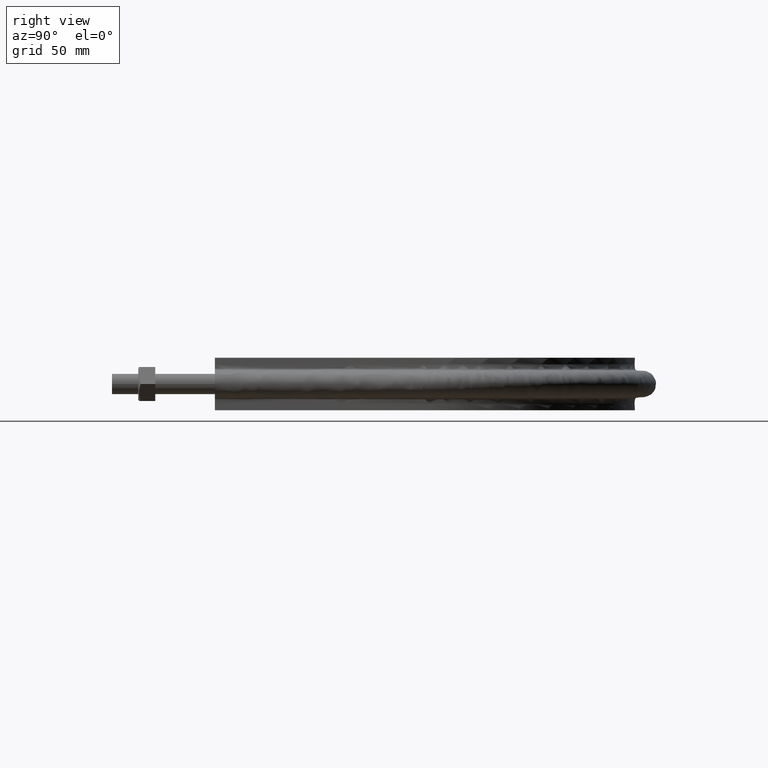
[diagram: clean part render]
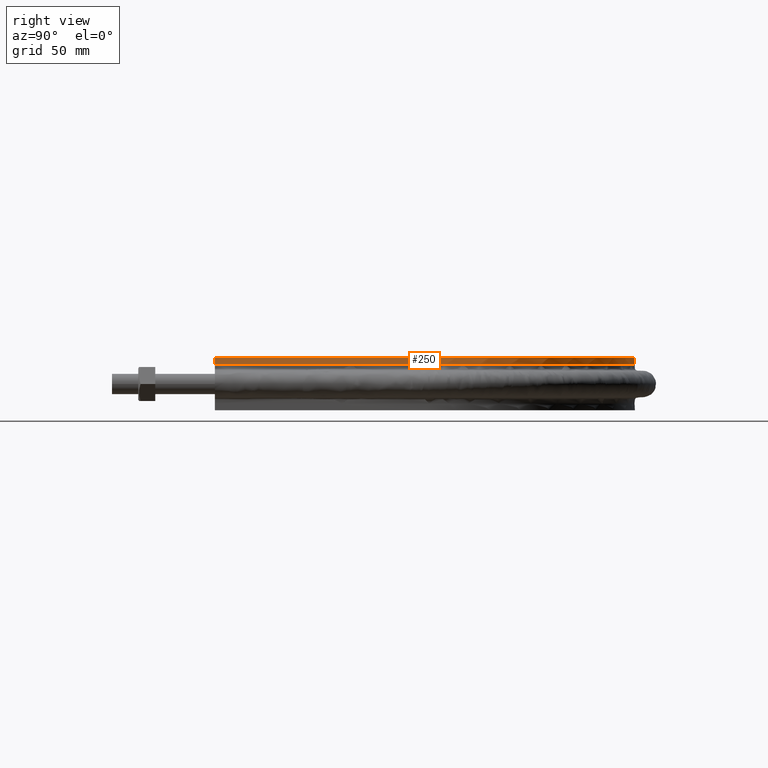
[diagram: same view with one face highlighted and labeled with its STEP entity id]
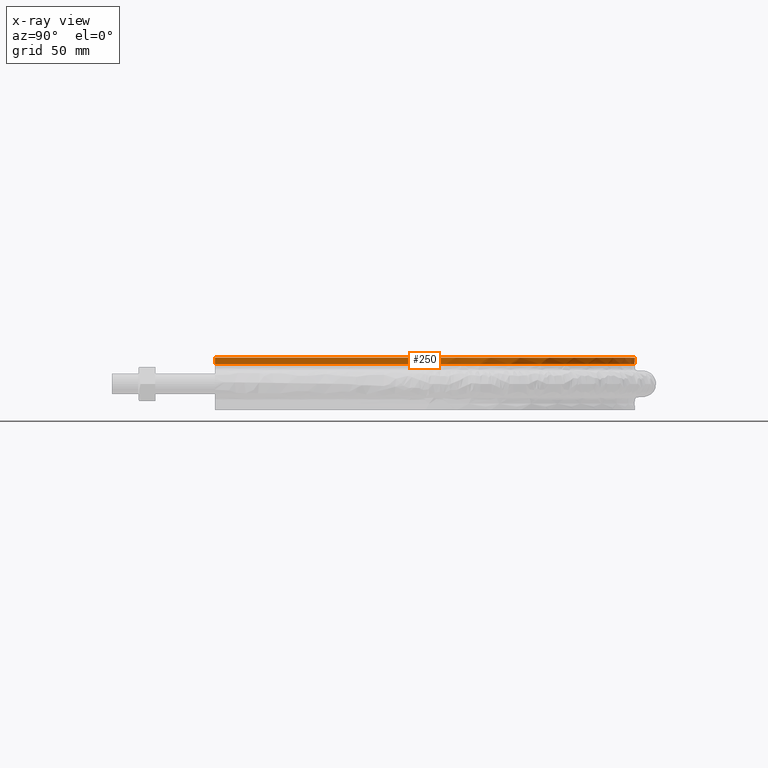
[diagram: x-ray of the same camera — body ghosted, the highlighted face saturated]
A machine part, right view. The second image highlights one B-rep face of the part: STEP entity #250.
The next image is the same camera in x-ray: the body ghosted, the highlighted face saturated — about 0% of this face is hidden behind the body in this view.
In plain terms, the highlighted face is a SurfaceOfExtrusion surface.
Its self-contained STEP definition (entity closure, byte-faithful):
#250 = ADVANCED_FACE( '', ( #339 ), #340, .F. );
#339 = FACE_OUTER_BOUND( '', #636, .T. );
#340 = SURFACE_OF_LINEAR_EXTRUSION( '', #637, #638 );
#636 = EDGE_LOOP( '', ( #1626, #1627, #1628, #1629 ) );
#637 = B_SPLINE_CURVE_WITH_KNOTS( '', 3, ( #1630, #1631, #1632, #1633, #1634, #1635, #1636, #1637, #1638, #1639, #1640, #1641, #1642, #1643, #1644, #1645, #1646, #1647, #1648, #1649, #1650, #1651, #1652, #1653, #1654, #1655, #1656, #1657, #1658, #1659, #1660, #1661, #1662, #1663, #1664, #1665, #1666, #1667, #1668, #1669, #1670, #1671, #1672, #1673, #1674, #1675, #1676, #1677, #1678, #1679, #1680, #1681, #1682, #1683, #1684, #1685, #1686, #1687, #1688, #1689, #1690, #1691, #1692, #1693, #1694, #1695, #1696, #1697, #1698, #1699, #1700, #1701, #1702, #1703, #1704, #1705, #1706, #1707, #1708, #1709, #1710, #1711, #1712, #1713, #1714, #1715, #1716, #1717, #1718, #1719, #1720, #1721, #1722, #1723, #1724, #1725, #1726, #1727, #1728, #1729, #1730, #1731, #1732, #1733, #1734, #1735, #1736, #1737, #1738, #1739 ), .UNSPECIFIED., .F., .F., ( 4, 1, 2, 2, 2, 2, 2, 2, 2, 2, 2, 2, 2, 2, 2, 2, 2, 2, 2, 2, 2, 2, 2, 2, 2, 2, 2, 2, 2, 2, 2, 2, 2, 2, 2, 2, 2, 2, 2, 2, 2, 2, 2, 2, 2, 2, 2, 2, 2, 2, 2, 2, 2, 2, 1, 4 ), ( 0.000000000000000, 0.124999999999999, 0.187499999999999, 0.191406249999999, 0.195312499999999, 0.203124999999999, 0.218749999999999, 0.222656249999999, 0.226562499999999, 0.234374999999999, 0.249999999999999, 0.281249999999999, 0.289062499999999, 0.292968749999999, 0.296874999999999, 0.312499999999999, 0.343749999999999, 0.351562499999998, 0.359374999999998, 0.374999999999998, 0.406249999999997, 0.421874999999997, 0.429687499999996, 0.437499999999996, 0.468749999999995, 0.484374999999995, 0.492187499999995, 0.499999999999994, 0.515624999999994, 0.531249999999994, 0.546874999999993, 0.554687499999993, 0.562499999999993, 0.578124999999992, 0.593749999999992, 0.624999999999991, 0.628906249999991, 0.632812499999990, 0.640624999999990, 0.656249999999990, 0.687499999999989, 0.691406249999989, 0.695312499999989, 0.703124999999989, 0.718749999999989, 0.749999999999990, 0.757812499999990, 0.761718749999991, 0.765624999999991, 0.781249999999991, 0.796874999999992, 0.804687499999992, 0.808593749999992, 0.812499999999992, 0.874999999999995, 1.00000000000000 ), .UNSPECIFIED. );
#638 = VECTOR( '', #1740, 1000.00000000000 );
#1626 = ORIENTED_EDGE( '', *, *, #1971, .F. );
#1627 = ORIENTED_EDGE( '', *, *, #1972, .T. );
#1628 = ORIENTED_EDGE( '', *, *, #1973, .T. );
#1629 = ORIENTED_EDGE( '', *, *, #1974, .F. );
#1630 = CARTESIAN_POINT( '', ( -164.400000000000, 78.5100000000001, 15.0000000000000 ) );
#1631 = CARTESIAN_POINT( '', ( -164.400000000000, 112.996106467763, 15.0000000000000 ) );
#1632 = CARTESIAN_POINT( '', ( -164.400000000000, 164.725266169407, 15.0000000000000 ) );
#1633 = CARTESIAN_POINT( '', ( -164.400000000000, 216.454425871052, 15.0000000000000 ) );
#1634 = CARTESIAN_POINT( '', ( -164.400000000000, 234.775169932051, 15.0000000000000 ) );
#1635 = CARTESIAN_POINT( '', ( -164.398813550316, 235.852821581500, 15.0000000000000 ) );
#1636 = CARTESIAN_POINT( '', ( -164.368108367063, 238.007189322103, 15.0000000000000 ) );
#1637 = CARTESIAN_POINT( '', ( -164.342080895018, 239.084020697952, 15.0000000000000 ) );
#1638 = CARTESIAN_POINT( '', ( -164.232092194460, 242.313461250392, 15.0000000000000 ) );
#1639 = CARTESIAN_POINT( '', ( -164.116241194121, 244.465017397138, 15.0000000000000 ) );
#1640 = CARTESIAN_POINT( '', ( -163.641462036595, 250.915484711679, 15.0000000000000 ) );
#1641 = CARTESIAN_POINT( '', ( -163.155580462305, 255.210203759885, 15.0000000000000 ) );
#1642 = CARTESIAN_POINT( '', ( -162.333675363724, 260.571517826757, 15.0000000000000 ) );
#1643 = CARTESIAN_POINT( '', ( -162.158545284194, 261.643425696206, 15.0000000000000 ) );
#1644 = CARTESIAN_POINT( '', ( -161.786628214989, 263.786526303843, 15.0000000000000 ) );
#1645 = CARTESIAN_POINT( '', ( -161.589634482679, 264.858713038454, 15.0000000000000 ) );
#1646 = CARTESIAN_POINT( '', ( -160.968305431882, 268.062088811464, 15.0000000000000 ) );
#1647 = CARTESIAN_POINT( '', ( -160.513270676098, 270.182710055849, 15.0000000000000 ) );
#1648 = CARTESIAN_POINT( '', ( -159.027557754481, 276.500359593573, 15.0000000000000 ) );
#1649 = CARTESIAN_POINT( '', ( -157.876518451671, 280.653264429394, 15.0000000000000 ) );
#1650 = CARTESIAN_POINT( '', ( -153.947032001795, 292.937345931314, 15.0000000000000 ) );
#1651 = CARTESIAN_POINT( '', ( -150.691120136139, 300.893487741848, 15.0000000000000 ) );
#1652 = CARTESIAN_POINT( '', ( -145.821985675346, 310.545668134871, 15.0000000000000 ) );
#1653 = CARTESIAN_POINT( '', ( -144.807995502513, 312.461380666880, 15.0000000000000 ) );
#1654 = CARTESIAN_POINT( '', ( -143.225880960344, 315.312539944797, 15.0000000000000 ) );
#1655 = CARTESIAN_POINT( '', ( -142.687697489771, 316.260241598423, 15.0000000000000 ) );
#1656 = CARTESIAN_POINT( '', ( -141.594350337442, 318.141956024918, 15.0000000000000 ) );
#1657 = CARTESIAN_POINT( '', ( -141.039267835167, 319.075891761575, 15.0000000000000 ) );
#1658 = CARTESIAN_POINT( '', ( -138.222181199068, 323.711268029200, 15.0000000000000 ) );
#1659 = CARTESIAN_POINT( '', ( -135.835418638084, 327.310018570784, 15.0000000000000 ) );
#1660 = CARTESIAN_POINT( '', ( -128.283562816433, 337.783966292529, 15.0000000000000 ) );
#1661 = CARTESIAN_POINT( '', ( -122.726288805896, 344.336355322911, 15.0000000000000 ) );
#1662 = CARTESIAN_POINT( '', ( -115.123140385251, 351.986423454744, 15.0000000000000 ) );
#1663 = CARTESIAN_POINT( '', ( -113.569638753351, 353.489379830995, 15.0000000000000 ) );
#1664 = CARTESIAN_POINT( '', ( -110.396195337457, 356.440604987088, 15.0000000000000 ) );
#1665 = CARTESIAN_POINT( '', ( -108.774438835459, 357.890427378995, 15.0000000000000 ) );
#1666 = CARTESIAN_POINT( '', ( -103.819607334313, 362.146372134186, 15.0000000000000 ) );
#1667 = CARTESIAN_POINT( '', ( -100.426161144554, 364.834793604191, 15.0000000000000 ) );
#1668 = CARTESIAN_POINT( '', ( -89.9824687653421, 372.465514094679, 15.0000000000000 ) );
#1669 = CARTESIAN_POINT( '', ( -82.6696423250389, 376.974545597898, 15.0000000000000 ) );
#1670 = CARTESIAN_POINT( '', ( -71.1713718990073, 382.865171733881, 15.0000000000000 ) );
#1671 = CARTESIAN_POINT( '', ( -67.2506245394265, 384.683525984584, 15.0000000000000 ) );
#1672 = CARTESIAN_POINT( '', ( -61.2349390330764, 387.189020812454, 15.0000000000000 ) );
#1673 = CARTESIAN_POINT( '', ( -59.2041890055406, 387.988083247065, 15.0000000000000 ) );
#1674 = CARTESIAN_POINT( '', ( -55.1322863354685, 389.498206135326, 15.0000000000000 ) );
#1675 = CARTESIAN_POINT( '', ( -53.0874238815460, 390.210949480402, 15.0000000000000 ) );
#1676 = CARTESIAN_POINT( '', ( -42.8192026236169, 393.566146384567, 15.0000000000000 ) );
#1677 = CARTESIAN_POINT( '', ( -34.4651179161254, 395.587794430536, 15.0000000000000 ) );
#1678 = CARTESIAN_POINT( '', ( -21.7242525597123, 397.624238271828, 15.0000000000000 ) );
#1679 = CARTESIAN_POINT( '', ( -17.4422836120294, 398.136775373455, 15.0000000000000 ) );
#1680 = CARTESIAN_POINT( '', ( -10.9662055313147, 398.653296815737, 15.0000000000000 ) );
#1681 = CARTESIAN_POINT( '', ( -8.79864529239642, 398.783359457582, 15.0000000000000 ) );
#1682 = CARTESIAN_POINT( '', ( -4.44551903538597, 398.957976921619, 15.0000000000000 ) );
#1683 = CARTESIAN_POINT( '', ( -2.27259610837867, 399.001985705461, 15.0000000000000 ) );
#1684 = CARTESIAN_POINT( '', ( 4.22655632945014, 399.006162562492, 15.0000000000000 ) );
#1685 = CARTESIAN_POINT( '', ( 8.53713545173528, 398.838905013959, 15.0000000000000 ) );
#1686 = CARTESIAN_POINT( '', ( 17.1147215710093, 398.170483930921, 15.0000000000000 ) );
#1687 = CARTESIAN_POINT( '', ( 21.3817269434236, 397.669307946827, 15.0000000000000 ) );
#1688 = CARTESIAN_POINT( '', ( 29.8718824409126, 396.330880345343, 15.0000000000000 ) );
#1689 = CARTESIAN_POINT( '', ( 34.0949513257591, 395.493006160240, 15.0000000000000 ) );
#1690 = CARTESIAN_POINT( '', ( 40.3962993198100, 393.981349502615, 15.0000000000000 ) );
#1691 = CARTESIAN_POINT( '', ( 42.4912038565127, 393.434972561113, 15.0000000000000 ) );
#1692 = CARTESIAN_POINT( '', ( 46.6697995000333, 392.256286873398, 15.0000000000000 ) );
#1693 = CARTESIAN_POINT( '', ( 48.7579338922557, 391.622436253105, 15.0000000000000 ) );
#1694 = CARTESIAN_POINT( '', ( 54.9584216875446, 389.605524079873, 15.0000000000000 ) );
#1695 = CARTESIAN_POINT( '', ( 59.0140687451709, 388.106221395848, 15.0000000000000 ) );
#1696 = CARTESIAN_POINT( '', ( 66.9734086702903, 384.806295118109, 15.0000000000000 ) );
#1697 = CARTESIAN_POINT( '', ( 70.8770915855636, 383.005651789421, 15.0000000000000 ) );
#1698 = CARTESIAN_POINT( '', ( 82.3605021218269, 377.152321599625, 15.0000000000000 ) );
#1699 = CARTESIAN_POINT( '', ( 89.7120307014919, 372.647122421075, 15.0000000000000 ) );
#1700 = CARTESIAN_POINT( '', ( 97.6299249979687, 366.879626274600, 15.0000000000000 ) );
#1701 = CARTESIAN_POINT( '', ( 98.5047204132679, 366.229041053651, 15.0000000000000 ) );
#1702 = CARTESIAN_POINT( '', ( 100.236657581933, 364.914222046599, 15.0000000000000 ) );
#1703 = CARTESIAN_POINT( '', ( 101.094794684466, 364.249272856705, 15.0000000000000 ) );
#1704 = CARTESIAN_POINT( '', ( 103.645933153505, 362.232019577849, 15.0000000000000 ) );
#1705 = CARTESIAN_POINT( '', ( 105.315674270231, 360.857321899442, 15.0000000000000 ) );
#1706 = CARTESIAN_POINT( '', ( 110.233147606976, 356.644897390919, 15.0000000000000 ) );
#1707 = CARTESIAN_POINT( '', ( 113.389316657785, 353.719018970045, 15.0000000000000 ) );
#1708 = CARTESIAN_POINT( '', ( 122.494796724361, 344.591882752152, 15.0000000000000 ) );
#1709 = CARTESIAN_POINT( '', ( 128.081145291164, 338.041186228428, 15.0000000000000 ) );
#1710 = CARTESIAN_POINT( '', ( 133.803670384363, 330.130479675381, 15.0000000000000 ) );
#1711 = CARTESIAN_POINT( '', ( 134.431692733715, 329.243989644066, 15.0000000000000 ) );
#1712 = CARTESIAN_POINT( '', ( 135.671998176902, 327.455856759366, 15.0000000000000 ) );
#1713 = CARTESIAN_POINT( '', ( 136.284665085841, 326.553597174778, 15.0000000000000 ) );
#1714 = CARTESIAN_POINT( '', ( 138.091073738600, 323.835825608081, 15.0000000000000 ) );
#1715 = CARTESIAN_POINT( '', ( 139.255724754700, 322.005851801354, 15.0000000000000 ) );
#1716 = CARTESIAN_POINT( '', ( 142.632951955004, 316.462530378628, 15.0000000000000 ) );
#1717 = CARTESIAN_POINT( '', ( 144.729041813961, 312.695892337488, 15.0000000000000 ) );
#1718 = CARTESIAN_POINT( '', ( 150.559103149299, 301.186356080804, 15.0000000000000 ) );
#1719 = CARTESIAN_POINT( '', ( 153.837172045715, 293.234890531218, 15.0000000000000 ) );
#1720 = CARTESIAN_POINT( '', ( 157.149590192740, 282.936358190019, 15.0000000000000 ) );
#1721 = CARTESIAN_POINT( '', ( 157.772812341463, 280.858690291605, 15.0000000000000 ) );
#1722 = CARTESIAN_POINT( '', ( 158.648068770349, 277.714933118652, 15.0000000000000 ) );
#1723 = CARTESIAN_POINT( '', ( 158.930158123234, 276.661365833308, 15.0000000000000 ) );
#1724 = CARTESIAN_POINT( '', ( 159.472262153517, 274.553221977531, 15.0000000000000 ) );
#1725 = CARTESIAN_POINT( '', ( 159.732447986844, 273.498121732389, 15.0000000000000 ) );
#1726 = CARTESIAN_POINT( '', ( 160.979600094206, 268.217531333792, 15.0000000000000 ) );
#1727 = CARTESIAN_POINT( '', ( 161.805586980862, 263.976806953231, 15.0000000000000 ) );
#1728 = CARTESIAN_POINT( '', ( 163.122468535573, 255.463646859113, 15.0000000000000 ) );
#1729 = CARTESIAN_POINT( '', ( 163.613345066263, 251.191209429132, 15.0000000000000 ) );
#1730 = CARTESIAN_POINT( '', ( 164.098151632013, 244.758751892187, 15.0000000000000 ) );
#1731 = CARTESIAN_POINT( '', ( 164.217770636892, 242.610626316205, 15.0000000000000 ) );
#1732 = CARTESIAN_POINT( '', ( 164.333610316843, 239.382420246157, 15.0000000000000 ) );
#1733 = CARTESIAN_POINT( '', ( 164.361621235171, 238.305348210462, 15.0000000000000 ) );
#1734 = CARTESIAN_POINT( '', ( 164.396285024590, 236.149182927863, 15.0000000000000 ) );
#1735 = CARTESIAN_POINT( '', ( 164.400000000000, 235.069811654245, 15.0000000000000 ) );
#1736 = CARTESIAN_POINT( '', ( 164.400000000000, 216.714523391334, 15.0000000000000 ) );
#1737 = CARTESIAN_POINT( '', ( 164.400000000000, 164.887827119584, 15.0000000000000 ) );
#1738 = CARTESIAN_POINT( '', ( 164.400000000000, 113.061130847834, 15.0000000000000 ) );
#1739 = CARTESIAN_POINT( '', ( 164.400000000000, 78.5099999999999, 15.0000000000000 ) );
#1740 = DIRECTION( '', ( 0.000000000000000, 0.000000000000000, 1.00000000000000 ) );
#1971 = EDGE_CURVE( '', #2083, #2084, #2085, .T. );
#1972 = EDGE_CURVE( '', #2083, #2086, #2087, .T. );
#1973 = EDGE_CURVE( '', #2086, #2088, #2089, .T. );
#1974 = EDGE_CURVE( '', #2084, #2088, #2090, .T. );
#2083 = VERTEX_POINT( '', #2385 );
#2084 = VERTEX_POINT( '', #2386 );
#2085 = B_SPLINE_CURVE_WITH_KNOTS( '', 3, ( #2387, #2388, #2389, #2390, #2391, #2392, #2393, #2394, #2395, #2396, #2397, #2398, #2399, #2400, #2401, #2402, #2403, #2404 ), .UNSPECIFIED., .F., .F., ( 4, 3, 1, 1, 1, 1, 1, 1, 1, 1, 3, 4 ), ( 0.000000000000000, 0.0909090909090909, 0.181818181818182, 0.272727272727273, 0.363636363636364, 0.454545454545455, 0.545454545454545, 0.636363636363636, 0.727272727272727, 0.818181818181818, 0.909090909090909, 1.00000000000000 ), .UNSPECIFIED. );
#2086 = VERTEX_POINT( '', #2405 );
#2087 = LINE( '', #2406, #2407 );
#2088 = VERTEX_POINT( '', #2408 );
#2089 = B_SPLINE_CURVE_WITH_KNOTS( '', 3, ( #2409, #2410, #2411, #2412, #2413, #2414, #2415, #2416, #2417, #2418, #2419, #2420, #2421, #2422, #2423, #2424, #2425, #2426, #2427, #2428, #2429, #2430, #2431, #2432, #2433, #2434, #2435, #2436, #2437, #2438, #2439, #2440, #2441, #2442, #2443, #2444, #2445, #2446, #2447, #2448, #2449, #2450, #2451, #2452, #2453, #2454, #2455, #2456, #2457, #2458, #2459, #2460, #2461, #2462, #2463, #2464, #2465, #2466, #2467, #2468, #2469, #2470, #2471, #2472, #2473, #2474, #2475, #2476, #2477, #2478, #2479, #2480, #2481, #2482, #2483, #2484, #2485, #2486, #2487, #2488, #2489, #2490, #2491, #2492, #2493, #2494, #2495, #2496, #2497, #2498, #2499, #2500, #2501, #2502, #2503, #2504, #2505, #2506, #2507, #2508, #2509, #2510, #2511, #2512, #2513, #2514, #2515, #2516, #2517, #2518, #2519, #2520, #2521, #2522, #2523, #2524, #2525, #2526, #2527, #2528, #2529, #2530, #2531, #2532, #2533, #2534, #2535, #2536, #2537, #2538, #2539 ), .UNSPECIFIED., .F., .F., ( 4, 1, 1, 1, 1, 2, 2, 2, 2, 2, 2, 2, 2, 2, 2, 2, 2, 2, 2, 2, 2, 2, 2, 2, 2, 2, 2, 2, 2, 2, 2, 2, 2, 2, 2, 2, 2, 2, 2, 2, 2, 2, 2, 2, 2, 2, 2, 2, 2, 2, 2, 2, 2, 2, 2, 2, 1, 2, 2, 2, 2, 2, 2, 2, 2, 1, 1, 1, 1, 4 ), ( 0.000000000000000, 0.104054729085104, 0.130068411356380, 0.143075252492018, 0.149578673059837, 0.152830383343746, 0.156082093627656, 0.159333803911565, 0.162585514195475, 0.169088934763294, 0.182095775898932, 0.195102617034570, 0.208109458170209, 0.221116299305847, 0.227619719873666, 0.234123140441485, 0.247129981577123, 0.260136822712762, 0.273143663848400, 0.276395374132309, 0.279647084416219, 0.286150504984038, 0.299157346119676, 0.312164187255314, 0.325171028390952, 0.331674448958772, 0.334926159242681, 0.338177869526591, 0.351184710662229, 0.364191551797868, 0.377198392933506, 0.383701813501326, 0.386953523785235, 0.390205234069145, 0.403212075204783, 0.416218916340422, 0.429225757476060, 0.442232598611699, 0.448736019179518, 0.455239439747338, 0.468246280882976, 0.481253122018615, 0.494259963154253, 0.500763383722072, 0.507266804289892, 0.520273645425530, 0.533280486561169, 0.546287327696808, 0.552790748264627, 0.556042458548537, 0.559294168832446, 0.572301009968085, 0.585307851103724, 0.598314692239363, 0.611321533375002, 0.614573243658912, 0.617824953942821, 0.624328374510641, 0.637335215646280, 0.650342056781918, 0.663348897917557, 0.669852318485376, 0.673104028769286, 0.676355739053196, 0.679607449337105, 0.682859159621015, 0.689362580188834, 0.702369421324473, 0.728383103595750, 0.832437832680860 ), .UNSPECIFIED. );
#2090 = LINE( '', #2540, #2541 );
#2385 = CARTESIAN_POINT( '', ( -164.400000000000, 78.5100000000001, 15.0000000000000 ) );
#2386 = CARTESIAN_POINT( '', ( 164.400000000000, 78.5100000000000, 15.0000000000000 ) );
#2387 = CARTESIAN_POINT( '', ( -164.400000000000, 78.5100000000001, 15.0000000000000 ) );
#2388 = CARTESIAN_POINT( '', ( -164.400000000000, 130.543333333333, 15.0000000000000 ) );
#2389 = CARTESIAN_POINT( '', ( -164.400000000000, 182.576666666667, 15.0000000000000 ) );
#2390 = CARTESIAN_POINT( '', ( -164.400000000000, 234.610000000000, 15.0000000000000 ) );
#2391 = CARTESIAN_POINT( '', ( -164.400000000000, 253.729852554832, 15.0000000000000 ) );
#2392 = CARTESIAN_POINT( '', ( -157.654714406062, 291.995036543922, 15.0000000000000 ) );
#2393 = CARTESIAN_POINT( '', ( -128.521300722003, 342.451262640467, 15.0000000000000 ) );
#2394 = CARTESIAN_POINT( '', ( -83.8863213984845, 379.905611089015, 15.0000000000000 ) );
#2395 = CARTESIAN_POINT( '', ( -29.1334136840584, 399.833751296446, 15.0000000000000 ) );
#2396 = CARTESIAN_POINT( '', ( 29.1334136840586, 399.833751296446, 15.0000000000000 ) );
#2397 = CARTESIAN_POINT( '', ( 83.8863213984847, 379.905611089014, 15.0000000000000 ) );
#2398 = CARTESIAN_POINT( '', ( 128.521300722003, 342.451262640467, 15.0000000000000 ) );
#2399 = CARTESIAN_POINT( '', ( 157.654714406062, 291.995036543922, 15.0000000000000 ) );
#2400 = CARTESIAN_POINT( '', ( 164.400000000000, 253.729852554832, 15.0000000000000 ) );
#2401 = CARTESIAN_POINT( '', ( 164.400000000000, 234.610000000000, 15.0000000000000 ) );
#2402 = CARTESIAN_POINT( '', ( 164.400000000000, 182.576666666667, 15.0000000000000 ) );
#2403 = CARTESIAN_POINT( '', ( 164.400000000000, 130.543333333333, 15.0000000000000 ) );
#2404 = CARTESIAN_POINT( '', ( 164.400000000000, 78.5100000000000, 15.0000000000000 ) );
#2405 = CARTESIAN_POINT( '', ( -164.400000000000, 78.5100000000001, 20.0000000000000 ) );
#2406 = CARTESIAN_POINT( '', ( -164.400000000000, 78.5100000000001, 15.0000000000000 ) );
#2407 = VECTOR( '', #2997, 1000.00000000000 );
#2408 = CARTESIAN_POINT( '', ( 164.400000000000, 78.5099999999999, 20.0000000000000 ) );
#2409 = CARTESIAN_POINT( '', ( -164.400000000000, 78.5100000000001, 20.0000000000000 ) );
#2410 = CARTESIAN_POINT( '', ( -164.400000000000, 113.194956691567, 20.0000000000000 ) );
#2411 = CARTESIAN_POINT( '', ( -164.400000000000, 156.551152556026, 20.0000000000000 ) );
#2412 = CARTESIAN_POINT( '', ( -164.400000000000, 204.242968006930, 20.0000000000000 ) );
#2413 = CARTESIAN_POINT( '', ( -164.400000000000, 219.417636559491, 20.0000000000000 ) );
#2414 = CARTESIAN_POINT( '', ( -164.400000000000, 227.004970835771, 20.0000000000000 ) );
#2415 = CARTESIAN_POINT( '', ( -164.400000000000, 230.256685525605, 20.0000000000000 ) );
#2416 = CARTESIAN_POINT( '', ( -164.400000000000, 232.424495318828, 20.0000000000000 ) );
#2417 = CARTESIAN_POINT( '', ( -164.401112814939, 233.508402047335, 20.0000000000000 ) );
#2418 = CARTESIAN_POINT( '', ( -164.397791436545, 235.676206372966, 20.0000000000000 ) );
#2419 = CARTESIAN_POINT( '', ( -164.389397229220, 236.760097451187, 20.0000000000000 ) );
#2420 = CARTESIAN_POINT( '', ( -164.346347317781, 238.927836376435, 20.0000000000000 ) );
#2421 = CARTESIAN_POINT( '', ( -164.314015247172, 240.011688048584, 20.0000000000000 ) );
#2422 = CARTESIAN_POINT( '', ( -164.184658021981, 243.263189792925, 20.0000000000000 ) );
#2423 = CARTESIAN_POINT( '', ( -164.054986387869, 245.432649531981, 20.0000000000000 ) );
#2424 = CARTESIAN_POINT( '', ( -163.540089866603, 251.903443163607, 20.0000000000000 ) );
#2425 = CARTESIAN_POINT( '', ( -163.028857186242, 256.178647842781, 20.0000000000000 ) );
#2426 = CARTESIAN_POINT( '', ( -161.680784922928, 264.654119101841, 20.0000000000000 ) );
#2427 = CARTESIAN_POINT( '', ( -160.843839994309, 268.854361436529, 20.0000000000000 ) );
#2428 = CARTESIAN_POINT( '', ( -158.845991034650, 277.180287246157, 20.0000000000000 ) );
#2429 = CARTESIAN_POINT( '', ( -157.684954010361, 281.305940112837, 20.0000000000000 ) );
#2430 = CARTESIAN_POINT( '', ( -155.032434907612, 289.481194251215, 20.0000000000000 ) );
#2431 = CARTESIAN_POINT( '', ( -153.540637667279, 293.530722988728, 20.0000000000000 ) );
#2432 = CARTESIAN_POINT( '', ( -151.046446265379, 299.545983905582, 20.0000000000000 ) );
#2433 = CARTESIAN_POINT( '', ( -150.176639375753, 301.530591569500, 20.0000000000000 ) );
#2434 = CARTESIAN_POINT( '', ( -148.365677489265, 305.451034189671, 20.0000000000000 ) );
#2435 = CARTESIAN_POINT( '', ( -147.423966722703, 307.388338955489, 20.0000000000000 ) );
#2436 = CARTESIAN_POINT( '', ( -144.492313373275, 313.132875216610, 20.0000000000000 ) );
#2437 = CARTESIAN_POINT( '', ( -142.395491839972, 316.872502291722, 20.0000000000000 ) );
#2438 = CARTESIAN_POINT( '', ( -137.921089039272, 324.174166757929, 20.0000000000000 ) );
#2439 = CARTESIAN_POINT( '', ( -135.543392362290, 327.736131148699, 20.0000000000000 ) );
#2440 = CARTESIAN_POINT( '', ( -130.504111697184, 334.680491951786, 20.0000000000000 ) );
#2441 = CARTESIAN_POINT( '', ( -127.842299055249, 338.062743733114, 20.0000000000000 ) );
#2442 = CARTESIAN_POINT( '', ( -124.331524748107, 342.174483348528, 20.0000000000000 ) );
#2443 = CARTESIAN_POINT( '', ( -123.620193252737, 342.991026751503, 20.0000000000000 ) );
#2444 = CARTESIAN_POINT( '', ( -122.179027254969, 344.612409802347, 20.0000000000000 ) );
#2445 = CARTESIAN_POINT( '', ( -121.449202472701, 345.417189981231, 20.0000000000000 ) );
#2446 = CARTESIAN_POINT( '', ( -119.241901422656, 347.803147571150, 20.0000000000000 ) );
#2447 = CARTESIAN_POINT( '', ( -117.743364650799, 349.359649553353, 20.0000000000000 ) );
#2448 = CARTESIAN_POINT( '', ( -113.168603753488, 353.929094656281, 20.0000000000000 ) );
#2449 = CARTESIAN_POINT( '', ( -110.013226002103, 356.841973084914, 20.0000000000000 ) );
#2450 = CARTESIAN_POINT( '', ( -103.496070778982, 362.406802862439, 20.0000000000000 ) );
#2451 = CARTESIAN_POINT( '', ( -100.134198242746, 365.058634032378, 20.0000000000000 ) );
#2452 = CARTESIAN_POINT( '', ( -93.2034983802209, 370.100667582666, 20.0000000000000 ) );
#2453 = CARTESIAN_POINT( '', ( -89.6348208454275, 372.491059326922, 20.0000000000000 ) );
#2454 = CARTESIAN_POINT( '', ( -84.1216642835617, 375.874200301253, 20.0000000000000 ) );
#2455 = CARTESIAN_POINT( '', ( -82.2572525184597, 376.968169226844, 20.0000000000000 ) );
#2456 = CARTESIAN_POINT( '', ( -79.4199251738941, 378.557658096216, 20.0000000000000 ) );
#2457 = CARTESIAN_POINT( '', ( -78.4664937879975, 379.079355636749, 20.0000000000000 ) );
#2458 = CARTESIAN_POINT( '', ( -76.5540001382329, 380.101226290094, 20.0000000000000 ) );
#2459 = CARTESIAN_POINT( '', ( -75.5941946256060, 380.601833763865, 20.0000000000000 ) );
#2460 = CARTESIAN_POINT( '', ( -70.7776054635568, 383.053904702584, 20.0000000000000 ) );
#2461 = CARTESIAN_POINT( '', ( -66.8682015972482, 384.852656297693, 20.0000000000000 ) );
#2462 = CARTESIAN_POINT( '', ( -58.9404340251167, 388.133941467269, 20.0000000000000 ) );
#2463 = CARTESIAN_POINT( '', ( -54.9221074398449, 389.616582771218, 20.0000000000000 ) );
#2464 = CARTESIAN_POINT( '', ( -46.7771352731434, 392.267507183330, 20.0000000000000 ) );
#2465 = CARTESIAN_POINT( '', ( -42.6507752742783, 393.436619095514, 20.0000000000000 ) );
#2466 = CARTESIAN_POINT( '', ( -36.3779362801154, 394.948540612920, 20.0000000000000 ) );
#2467 = CARTESIAN_POINT( '', ( -34.2731054845731, 395.412219626070, 20.0000000000000 ) );
#2468 = CARTESIAN_POINT( '', ( -31.0947095102841, 396.046358265767, 20.0000000000000 ) );
#2469 = CARTESIAN_POINT( '', ( -30.0317191361183, 396.247507583014, 20.0000000000000 ) );
#2470 = CARTESIAN_POINT( '', ( -27.8986333936848, 396.629186444373, 20.0000000000000 ) );
#2471 = CARTESIAN_POINT( '', ( -26.8273434139387, 396.809901238471, 20.0000000000000 ) );
#2472 = CARTESIAN_POINT( '', ( -21.4696015124212, 397.658929575962, 20.0000000000000 ) );
#2473 = CARTESIAN_POINT( '', ( -17.1843900397935, 398.163087914422, 20.0000000000000 ) );
#2474 = CARTESIAN_POINT( '', ( -8.61585586475004, 398.834704046002, 20.0000000000000 ) );
#2475 = CARTESIAN_POINT( '', ( -4.33253349701473, 399.002102177489, 20.0000000000000 ) );
#2476 = CARTESIAN_POINT( '', ( 4.23224776210572, 399.004706890969, 20.0000000000000 ) );
#2477 = CARTESIAN_POINT( '', ( 8.51370656733813, 398.839898114999, 20.0000000000000 ) );
#2478 = CARTESIAN_POINT( '', ( 17.0747401534021, 398.174426027000, 20.0000000000000 ) );
#2479 = CARTESIAN_POINT( '', ( 21.3543151187259, 397.673795603418, 20.0000000000000 ) );
#2480 = CARTESIAN_POINT( '', ( 27.7722131616461, 396.661798633603, 20.0000000000000 ) );
#2481 = CARTESIAN_POINT( '', ( 29.9140086384709, 396.280063374135, 20.0000000000000 ) );
#2482 = CARTESIAN_POINT( '', ( 34.1597071946010, 395.435755209703, 20.0000000000000 ) );
#2483 = CARTESIAN_POINT( '', ( 36.2679191606644, 394.972624095614, 20.0000000000000 ) );
#2484 = CARTESIAN_POINT( '', ( 42.5495878486316, 393.462944409612, 20.0000000000000 ) );
#2485 = CARTESIAN_POINT( '', ( 46.6801348271532, 392.296270371900, 20.0000000000000 ) );
#2486 = CARTESIAN_POINT( '', ( 54.8292840046264, 389.649533827340, 20.0000000000000 ) );
#2487 = CARTESIAN_POINT( '', ( 58.8478709900290, 388.169428730290, 20.0000000000000 ) );
#2488 = CARTESIAN_POINT( '', ( 66.7727743121286, 384.894917799148, 20.0000000000000 ) );
#2489 = CARTESIAN_POINT( '', ( 70.6791112233455, 383.100569563252, 20.0000000000000 ) );
#2490 = CARTESIAN_POINT( '', ( 76.4520718313795, 380.166765884870, 20.0000000000000 ) );
#2491 = CARTESIAN_POINT( '', ( 78.3619473175714, 379.148393463063, 20.0000000000000 ) );
#2492 = CARTESIAN_POINT( '', ( 82.1521398445280, 377.028900000013, 20.0000000000000 ) );
#2493 = CARTESIAN_POINT( '', ( 84.0218361506236, 375.933662305822, 20.0000000000000 ) );
#2494 = CARTESIAN_POINT( '', ( 89.5459979753104, 372.549008376609, 20.0000000000000 ) );
#2495 = CARTESIAN_POINT( '', ( 93.1199772103812, 370.158194645048, 20.0000000000000 ) );
#2496 = CARTESIAN_POINT( '', ( 100.057978294405, 365.117239771998, 20.0000000000000 ) );
#2497 = CARTESIAN_POINT( '', ( 103.421801536321, 362.466853322402, 20.0000000000000 ) );
#2498 = CARTESIAN_POINT( '', ( 109.940193148712, 356.907620719414, 20.0000000000000 ) );
#2499 = CARTESIAN_POINT( '', ( 113.094804278789, 353.998827380248, 20.0000000000000 ) );
#2500 = CARTESIAN_POINT( '', ( 117.666768975038, 349.438073768968, 20.0000000000000 ) );
#2501 = CARTESIAN_POINT( '', ( 119.164117876877, 347.884919181135, 20.0000000000000 ) );
#2502 = CARTESIAN_POINT( '', ( 121.369267704193, 345.504702647791, 20.0000000000000 ) );
#2503 = CARTESIAN_POINT( '', ( 122.097504670187, 344.702882136051, 20.0000000000000 ) );
#2504 = CARTESIAN_POINT( '', ( 123.540195090083, 343.082216503168, 20.0000000000000 ) );
#2505 = CARTESIAN_POINT( '', ( 124.254377380737, 342.263630681837, 20.0000000000000 ) );
#2506 = CARTESIAN_POINT( '', ( 127.774789921493, 338.146514758157, 20.0000000000000 ) );
#2507 = CARTESIAN_POINT( '', ( 130.442435347836, 334.761097001741, 20.0000000000000 ) );
#2508 = CARTESIAN_POINT( '', ( 135.490619375253, 327.813142423084, 20.0000000000000 ) );
#2509 = CARTESIAN_POINT( '', ( 137.871345881558, 324.250721521454, 20.0000000000000 ) );
#2510 = CARTESIAN_POINT( '', ( 142.349926805875, 316.951373103872, 20.0000000000000 ) );
#2511 = CARTESIAN_POINT( '', ( 144.447832885233, 313.214477458319, 20.0000000000000 ) );
#2512 = CARTESIAN_POINT( '', ( 148.357643246088, 305.564248803822, 20.0000000000000 ) );
#2513 = CARTESIAN_POINT( '', ( 150.170208090249, 301.651323302578, 20.0000000000000 ) );
#2514 = CARTESIAN_POINT( '', ( 152.249962193094, 296.645450810820, 20.0000000000000 ) );
#2515 = CARTESIAN_POINT( '', ( 152.656898188072, 295.637746950869, 20.0000000000000 ) );
#2516 = CARTESIAN_POINT( '', ( 153.448598221972, 293.619489616334, 20.0000000000000 ) );
#2517 = CARTESIAN_POINT( '', ( 154.604082453027, 290.585090430418, 20.0000000000000 ) );
#2518 = CARTESIAN_POINT( '', ( 155.664224929574, 287.529838845204, 20.0000000000000 ) );
#2519 = CARTESIAN_POINT( '', ( 157.659619292076, 281.392020586263, 20.0000000000000 ) );
#2520 = CARTESIAN_POINT( '', ( 158.823627411517, 277.263779806066, 20.0000000000000 ) );
#2521 = CARTESIAN_POINT( '', ( 160.826483259109, 268.936181720182, 20.0000000000000 ) );
#2522 = CARTESIAN_POINT( '', ( 161.665372921475, 264.736833586017, 20.0000000000000 ) );
#2523 = CARTESIAN_POINT( '', ( 163.017050638178, 256.266814936669, 20.0000000000000 ) );
#2524 = CARTESIAN_POINT( '', ( 163.530043425187, 251.996189199007, 20.0000000000000 ) );
#2525 = CARTESIAN_POINT( '', ( 164.048104978438, 245.535260317739, 20.0000000000000 ) );
#2526 = CARTESIAN_POINT( '', ( 164.178967102381, 243.370129820410, 20.0000000000000 ) );
#2527 = CARTESIAN_POINT( '', ( 164.310513690544, 240.116451581558, 20.0000000000000 ) );
#2528 = CARTESIAN_POINT( '', ( 164.343561000334, 239.031880269033, 20.0000000000000 ) );
#2529 = CARTESIAN_POINT( '', ( 164.388013795319, 236.862713802182, 20.0000000000000 ) );
#2530 = CARTESIAN_POINT( '', ( 164.397282425713, 235.778116293781, 20.0000000000000 ) );
#2531 = CARTESIAN_POINT( '', ( 164.401463363768, 233.608905461278, 20.0000000000000 ) );
#2532 = CARTESIAN_POINT( '', ( 164.400000000000, 232.524296129933, 20.0000000000000 ) );
#2533 = CARTESIAN_POINT( '', ( 164.400000000000, 230.355080691483, 20.0000000000000 ) );
#2534 = CARTESIAN_POINT( '', ( 164.400000000000, 227.101257533808, 20.0000000000000 ) );
#2535 = CARTESIAN_POINT( '', ( 164.400000000000, 219.509003499234, 20.0000000000000 ) );
#2536 = CARTESIAN_POINT( '', ( 164.400000000000, 204.324495430086, 20.0000000000000 ) );
#2537 = CARTESIAN_POINT( '', ( 164.400000000000, 156.601755784191, 20.0000000000000 ) );
#2538 = CARTESIAN_POINT( '', ( 164.400000000000, 113.217447015195, 20.0000000000000 ) );
#2539 = CARTESIAN_POINT( '', ( 164.400000000000, 78.5099999999998, 20.0000000000000 ) );
#2540 = CARTESIAN_POINT( '', ( 164.400000000000, 78.5099999999999, 15.0000000000000 ) );
#2541 = VECTOR( '', #2998, 1000.00000000000 );
#2997 = DIRECTION( '', ( 0.000000000000000, 0.000000000000000, 1.00000000000000 ) );
#2998 = DIRECTION( '', ( 0.000000000000000, 0.000000000000000, 1.00000000000000 ) );